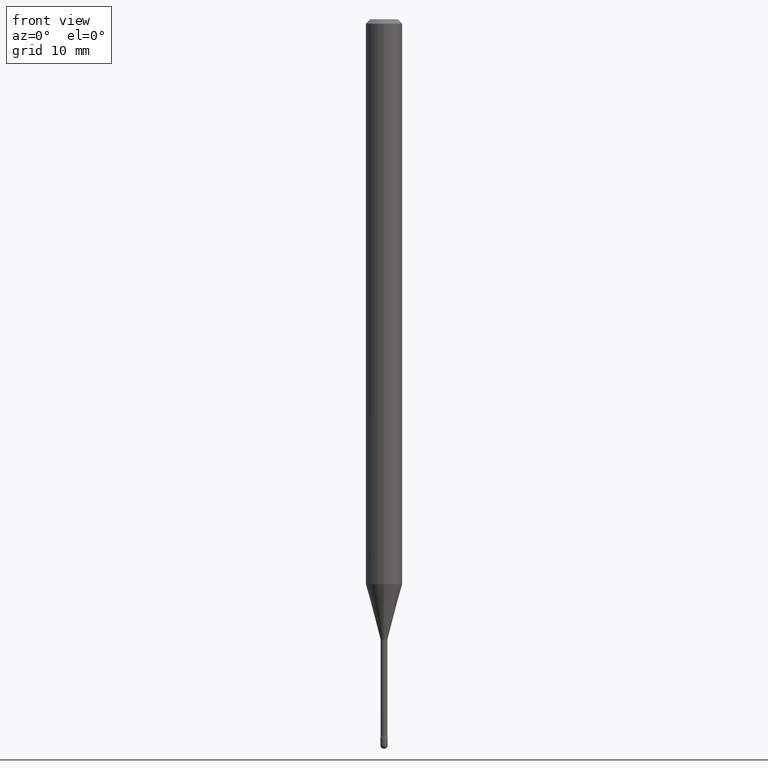
[diagram: clean part render]
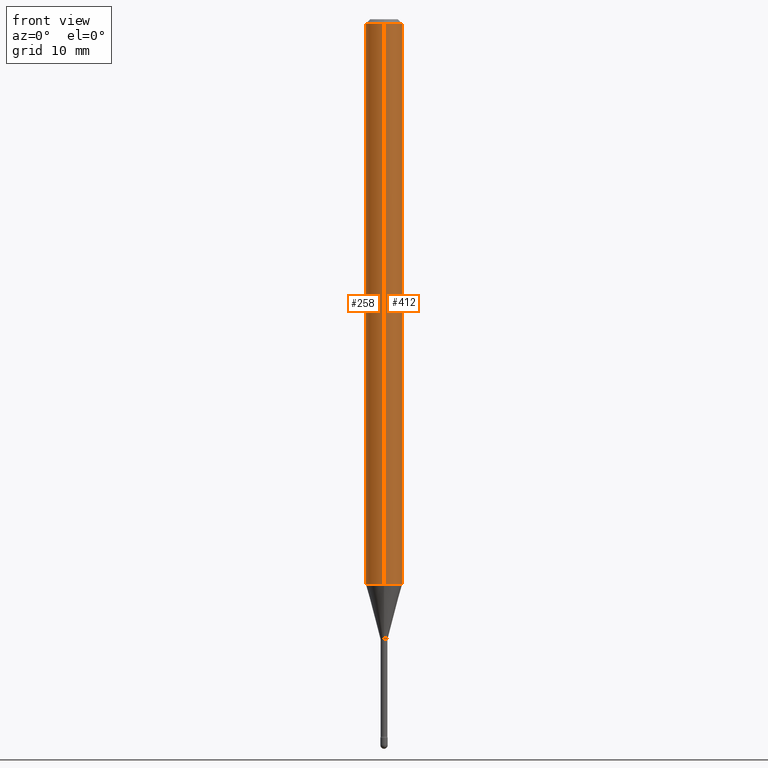
[diagram: same view with one multi-face feature highlighted, each face labeled with its STEP entity id]
A machine part, front view. The highlighted faces form ONE feature: a constant-radius fillet chain: 2 tangent blend faces with common blend radius 1.5875 mm. The faces share edges in the B-rep.
Their STEP definitions:
[1] entity #412 (Cylinder):
#6 = CARTESIAN_POINT ( 'NONE',  ( 4.733511001452815197E-29, -6.758012053933247816E-15, -1.935598421515879908 ) ) ;
#12 = EDGE_CURVE ( 'NONE', #155, #165, #509, .T. ) ;
#20 = CYLINDRICAL_SURFACE ( 'NONE', #521, 0.06250000000000000000 ) ;
#28 = CARTESIAN_POINT ( 'NONE',  ( 4.440892098501098492E-16, 0.06249999999999323458, -1.935598421515880352 ) ) ;
#62 = VERTEX_POINT ( 'NONE', #28 ) ;
#83 = AXIS2_PLACEMENT_3D ( 'NONE', #168, #508, #451 ) ;
#116 = CARTESIAN_POINT ( 'NONE',  ( -1.169113584055446105E-44, 1.669184350826100908E-30, 4.780733988912460139E-16 ) ) ;
#127 = EDGE_CURVE ( 'NONE', #62, #165, #305, .T. ) ;
#136 = ORIENTED_EDGE ( 'NONE', *, *, #304, .F. ) ;
#146 = LINE ( 'NONE', #323, #279 ) ;
#155 = VERTEX_POINT ( 'NONE', #307 ) ;
#165 = VERTEX_POINT ( 'NONE', #379 ) ;
#168 = CARTESIAN_POINT ( 'NONE',  ( 3.668253922535558756E-31, -5.237149383993110783E-17, -0.01500000000000008271 ) ) ;
#185 = DIRECTION ( 'NONE',  ( -2.445502615023692233E-29, 3.491432922662054397E-15, 1.000000000000000000 ) ) ;
#197 = DIRECTION ( 'NONE',  ( -6.982962677686265922E-15, -1.000000000000000000, 3.491432922662053608E-15 ) ) ;
#218 = DIRECTION ( 'NONE',  ( -2.445502615023692233E-29, 3.491432922662054792E-15, 1.000000000000000000 ) ) ;
#227 = DIRECTION ( 'NONE',  ( -2.445502615023692233E-29, 3.491432922662054792E-15, 1.000000000000000000 ) ) ;
#229 = ORIENTED_EDGE ( 'NONE', *, *, #245, .T. ) ;
#234 = DIRECTION ( 'NONE',  ( -6.982962677686265922E-15, -1.000000000000000000, 4.370956789862821150E-15 ) ) ;
#245 = EDGE_CURVE ( 'NONE', #274, #62, #427, .T. ) ;
#274 = VERTEX_POINT ( 'NONE', #357 ) ;
#279 = VECTOR ( 'NONE', #227, 39.37007874015748143 ) ;
#304 = EDGE_CURVE ( 'NONE', #274, #155, #146, .T. ) ;
#305 = LINE ( 'NONE', #556, #520 ) ;
#307 = CARTESIAN_POINT ( 'NONE',  ( -4.364351673553912750E-16, -0.06250000000000005551, -0.01499999999999986587 ) ) ;
#319 = ORIENTED_EDGE ( 'NONE', *, *, #12, .F. ) ;
#323 = CARTESIAN_POINT ( 'NONE',  ( -4.364351673553916201E-16, -0.06250000000000000000, 6.962879565576243891E-16 ) ) ;
#357 = CARTESIAN_POINT ( 'NONE',  ( -4.364351673553444364E-16, -0.06250000000000677236, -1.935598421515879686 ) ) ;
#379 = CARTESIAN_POINT ( 'NONE',  ( 4.440892098501102436E-16, 0.06249999999999995143, -0.01500000000000030129 ) ) ;
#412 = ADVANCED_FACE ( 'NONE', ( #554 ), #20, .T. ) ;
#418 = DIRECTION ( 'NONE',  ( -2.445502615023692233E-29, 3.491432922662054397E-15, 1.000000000000000000 ) ) ;
#427 = CIRCLE ( 'NONE', #510, 0.06250000000000000000 ) ;
#451 = DIRECTION ( 'NONE',  ( -6.982962677686265922E-15, -1.000000000000000000, 3.483106191921935554E-15 ) ) ;
#486 = ORIENTED_EDGE ( 'NONE', *, *, #127, .T. ) ;
#504 = EDGE_LOOP ( 'NONE', ( #229, #486, #319, #136 ) ) ;
#508 = DIRECTION ( 'NONE',  ( -2.445502615023692233E-29, 3.491432922662054397E-15, 1.000000000000000000 ) ) ;
#509 = CIRCLE ( 'NONE', #83, 0.06250000000000000000 ) ;
#510 = AXIS2_PLACEMENT_3D ( 'NONE', #6, #185, #234 ) ;
#520 = VECTOR ( 'NONE', #218, 39.37007874015748143 ) ;
#521 = AXIS2_PLACEMENT_3D ( 'NONE', #116, #418, #197 ) ;
#554 = FACE_OUTER_BOUND ( 'NONE', #504, .T. ) ;
#556 = CARTESIAN_POINT ( 'NONE',  ( 4.440892098500625669E-16, 0.06250000000000000000, 2.598588412248676881E-16 ) ) ;
[2] entity #258 (Cylinder):
#28 = CARTESIAN_POINT ( 'NONE',  ( 4.440892098501098492E-16, 0.06249999999999323458, -1.935598421515880352 ) ) ;
#62 = VERTEX_POINT ( 'NONE', #28 ) ;
#64 = DIRECTION ( 'NONE',  ( -2.445502615023692233E-29, 3.491432922662054397E-15, 1.000000000000000000 ) ) ;
#126 = DIRECTION ( 'NONE',  ( -2.445502615023692233E-29, 3.491432922662054397E-15, 1.000000000000000000 ) ) ;
#127 = EDGE_CURVE ( 'NONE', #62, #165, #305, .T. ) ;
#146 = LINE ( 'NONE', #323, #279 ) ;
#155 = VERTEX_POINT ( 'NONE', #307 ) ;
#165 = VERTEX_POINT ( 'NONE', #379 ) ;
#180 = CIRCLE ( 'NONE', #364, 0.06250000000000000000 ) ;
#189 = CYLINDRICAL_SURFACE ( 'NONE', #342, 0.06250000000000000000 ) ;
#203 = EDGE_CURVE ( 'NONE', #62, #274, #180, .T. ) ;
#205 = ORIENTED_EDGE ( 'NONE', *, *, #203, .T. ) ;
#218 = DIRECTION ( 'NONE',  ( -2.445502615023692233E-29, 3.491432922662054792E-15, 1.000000000000000000 ) ) ;
#227 = DIRECTION ( 'NONE',  ( -2.445502615023692233E-29, 3.491432922662054792E-15, 1.000000000000000000 ) ) ;
#258 = ADVANCED_FACE ( 'NONE', ( #316 ), #189, .T. ) ;
#274 = VERTEX_POINT ( 'NONE', #357 ) ;
#279 = VECTOR ( 'NONE', #227, 39.37007874015748143 ) ;
#280 = DIRECTION ( 'NONE',  ( -6.982962677686265922E-15, -1.000000000000000000, 3.491432922662053608E-15 ) ) ;
#287 = ORIENTED_EDGE ( 'NONE', *, *, #127, .F. ) ;
#292 = DIRECTION ( 'NONE',  ( -6.982962677686265922E-15, -1.000000000000000000, 3.483106191921935554E-15 ) ) ;
#296 = ORIENTED_EDGE ( 'NONE', *, *, #462, .F. ) ;
#304 = EDGE_CURVE ( 'NONE', #274, #155, #146, .T. ) ;
#305 = LINE ( 'NONE', #556, #520 ) ;
#307 = CARTESIAN_POINT ( 'NONE',  ( -4.364351673553912750E-16, -0.06250000000000005551, -0.01499999999999986587 ) ) ;
#309 = EDGE_LOOP ( 'NONE', ( #287, #205, #540, #296 ) ) ;
#316 = FACE_OUTER_BOUND ( 'NONE', #309, .T. ) ;
#323 = CARTESIAN_POINT ( 'NONE',  ( -4.364351673553916201E-16, -0.06250000000000000000, 6.962879565576243891E-16 ) ) ;
#338 = CARTESIAN_POINT ( 'NONE',  ( 3.668253922535558756E-31, -5.237149383993110783E-17, -0.01500000000000008271 ) ) ;
#342 = AXIS2_PLACEMENT_3D ( 'NONE', #535, #484, #280 ) ;
#357 = CARTESIAN_POINT ( 'NONE',  ( -4.364351673553444364E-16, -0.06250000000000677236, -1.935598421515879686 ) ) ;
#359 = AXIS2_PLACEMENT_3D ( 'NONE', #338, #64, #292 ) ;
#364 = AXIS2_PLACEMENT_3D ( 'NONE', #512, #126, #493 ) ;
#379 = CARTESIAN_POINT ( 'NONE',  ( 4.440892098501102436E-16, 0.06249999999999995143, -0.01500000000000030129 ) ) ;
#429 = CIRCLE ( 'NONE', #359, 0.06250000000000000000 ) ;
#462 = EDGE_CURVE ( 'NONE', #165, #155, #429, .T. ) ;
#484 = DIRECTION ( 'NONE',  ( -2.445502615023692233E-29, 3.491432922662054397E-15, 1.000000000000000000 ) ) ;
#493 = DIRECTION ( 'NONE',  ( -6.982962677686265922E-15, -1.000000000000000000, 4.370956789862821150E-15 ) ) ;
#512 = CARTESIAN_POINT ( 'NONE',  ( 4.733511001452815197E-29, -6.758012053933247816E-15, -1.935598421515879908 ) ) ;
#520 = VECTOR ( 'NONE', #218, 39.37007874015748143 ) ;
#535 = CARTESIAN_POINT ( 'NONE',  ( -1.169113584055446105E-44, 1.669184350826100908E-30, 4.780733988912460139E-16 ) ) ;
#540 = ORIENTED_EDGE ( 'NONE', *, *, #304, .T. ) ;
#556 = CARTESIAN_POINT ( 'NONE',  ( 4.440892098500625669E-16, 0.06250000000000000000, 2.598588412248676881E-16 ) ) ;